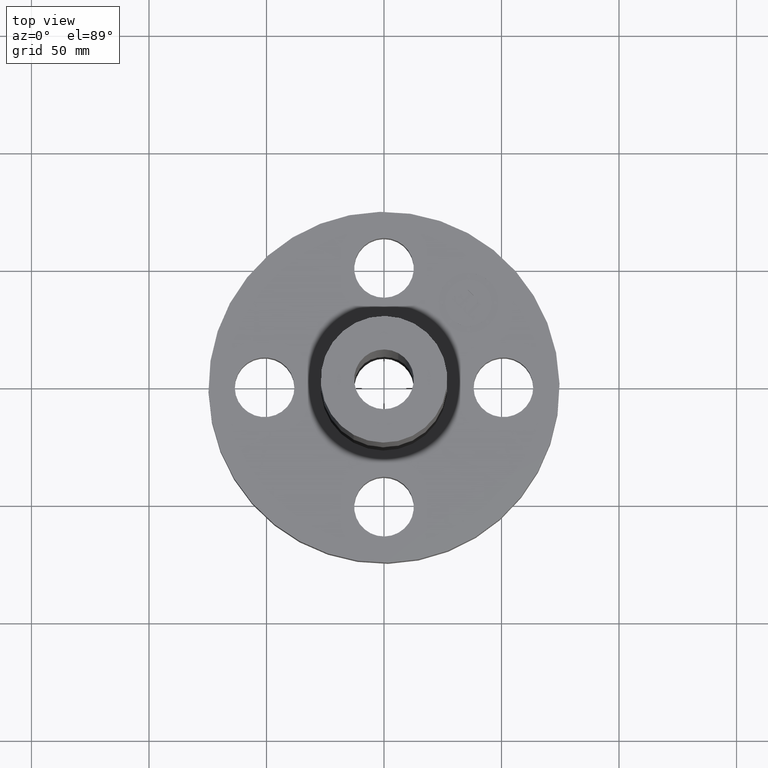
[diagram: clean part render]
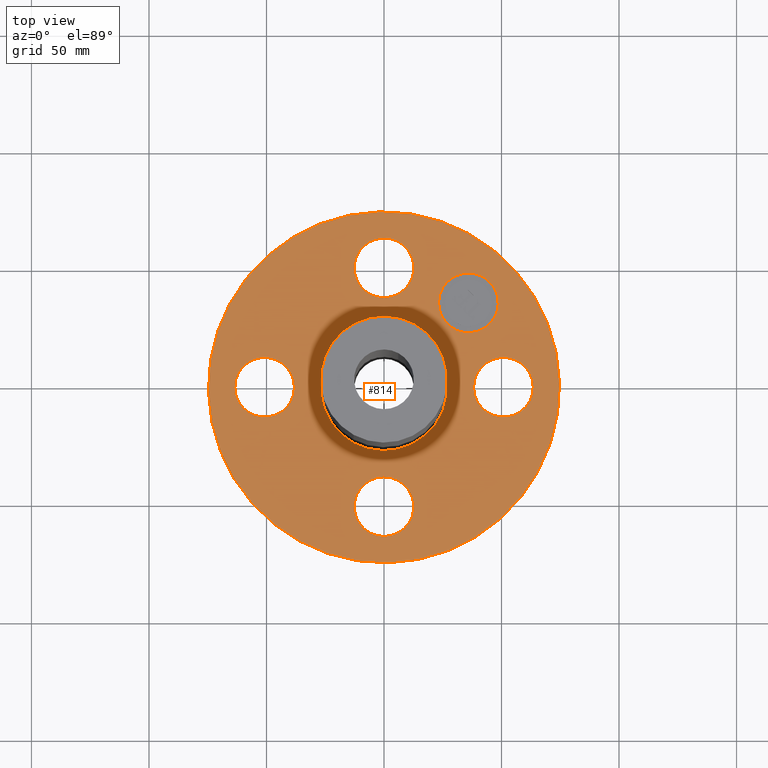
[diagram: same view with one face highlighted and labeled with its STEP entity id]
A machine part, top view. The second image highlights one B-rep face of the part: STEP entity #814.
In plain terms, the highlighted planar face has unit normal (0, 0, -1).
Its self-contained STEP definition (entity closure, byte-faithful):
#51=AXIS2_PLACEMENT_3D('Circle Axis2P3D',#49,#50,$) ;
#182=AXIS2_PLACEMENT_3D('Circle Axis2P3D',#180,#181,$) ;
#206=AXIS2_PLACEMENT_3D('Circle Axis2P3D',#204,#205,$) ;
#225=AXIS2_PLACEMENT_3D('Circle Axis2P3D',#223,#224,$) ;
#242=AXIS2_PLACEMENT_3D('Circle Axis2P3D',#240,#241,$) ;
#277=AXIS2_PLACEMENT_3D('Circle Axis2P3D',#275,#276,$) ;
#652=AXIS2_PLACEMENT_3D('Circle Axis2P3D',#650,#651,$) ;
#671=AXIS2_PLACEMENT_3D('Circle Axis2P3D',#669,#670,$) ;
#695=AXIS2_PLACEMENT_3D('Circle Axis2P3D',#693,#694,$) ;
#714=AXIS2_PLACEMENT_3D('Circle Axis2P3D',#712,#713,$) ;
#738=AXIS2_PLACEMENT_3D('Circle Axis2P3D',#736,#737,$) ;
#757=AXIS2_PLACEMENT_3D('Circle Axis2P3D',#755,#756,$) ;
#770=AXIS2_PLACEMENT_3D('Plane Axis2P3D',#767,#768,#769) ;
#798=AXIS2_PLACEMENT_3D('Circle Axis2P3D',#796,#797,$) ;
#807=AXIS2_PLACEMENT_3D('Circle Axis2P3D',#805,#806,$) ;
#44=CARTESIAN_POINT('Vertex',(1.56120871906,-0.239712769303,1.12)) ;
#49=CARTESIAN_POINT('Axis2P3D Location',(2.00000000001,0.,1.12)) ;
#53=CARTESIAN_POINT('Vertex',(2.43879128095,0.239712769303,1.12)) ;
#180=CARTESIAN_POINT('Axis2P3D Location',(2.00000000001,0.,1.12)) ;
#201=CARTESIAN_POINT('Vertex',(-1.4095110835,-2.58009273197,1.12)) ;
#204=CARTESIAN_POINT('Axis2P3D Location',(0.,0.,1.12)) ;
#208=CARTESIAN_POINT('Vertex',(1.4095110835,2.58009273197,1.12)) ;
#223=CARTESIAN_POINT('Axis2P3D Location',(0.,0.,1.12)) ;
#240=CARTESIAN_POINT('Axis2P3D Location',(0.,0.,1.12)) ;
#244=CARTESIAN_POINT('Vertex',(0.508191070922,0.930237515608,1.12)) ;
#246=CARTESIAN_POINT('Vertex',(-0.508191070922,-0.930237515608,1.12)) ;
#275=CARTESIAN_POINT('Axis2P3D Location',(0.,0.,1.12)) ;
#647=CARTESIAN_POINT('Vertex',(-0.239712769303,-1.56120871906,1.12)) ;
#650=CARTESIAN_POINT('Axis2P3D Location',(-1.57276554636E-016,-2.00000000001,1.12)) ;
#654=CARTESIAN_POINT('Vertex',(0.239712769303,-2.43879128095,1.12)) ;
#669=CARTESIAN_POINT('Axis2P3D Location',(-1.57276554636E-016,-2.00000000001,1.12)) ;
#690=CARTESIAN_POINT('Vertex',(-1.56120871906,0.239712769303,1.12)) ;
#693=CARTESIAN_POINT('Axis2P3D Location',(-2.00000000001,-2.4492935983E-016,1.12)) ;
#697=CARTESIAN_POINT('Vertex',(-2.43879128095,-0.239712769303,1.12)) ;
#712=CARTESIAN_POINT('Axis2P3D Location',(-2.00000000001,-2.4492935983E-016,1.12)) ;
#733=CARTESIAN_POINT('Vertex',(0.239712769303,1.56120871906,1.12)) ;
#736=CARTESIAN_POINT('Axis2P3D Location',(-8.76528051945E-017,2.00000000001,1.12)) ;
#740=CARTESIAN_POINT('Vertex',(-0.239712769303,2.43879128095,1.12)) ;
#755=CARTESIAN_POINT('Axis2P3D Location',(-8.76528051945E-017,2.00000000001,1.12)) ;
#767=CARTESIAN_POINT('Axis2P3D Location',(0.,2.94000000001,1.12)) ;
#796=CARTESIAN_POINT('Axis2P3D Location',(1.41421356238,1.41421356238,1.12)) ;
#800=CARTESIAN_POINT('Vertex',(1.76776694944,1.06066017532,1.12)) ;
#802=CARTESIAN_POINT('Vertex',(1.06066017532,1.76776694944,1.12)) ;
#805=CARTESIAN_POINT('Axis2P3D Location',(1.41421356238,1.41421356238,1.12)) ;
#50=DIRECTION('Axis2P3D Direction',(0.,-0.,0.0393700787402)) ;
#181=DIRECTION('Axis2P3D Direction',(0.,-0.,0.0393700787402)) ;
#205=DIRECTION('Axis2P3D Direction',(0.,0.,-0.0393700787402)) ;
#224=DIRECTION('Axis2P3D Direction',(0.,0.,-0.0393700787402)) ;
#241=DIRECTION('Axis2P3D Direction',(0.,0.,-0.0393700787402)) ;
#276=DIRECTION('Axis2P3D Direction',(0.,0.,-0.0393700787402)) ;
#651=DIRECTION('Axis2P3D Direction',(-0.,0.,0.0393700787402)) ;
#670=DIRECTION('Axis2P3D Direction',(-0.,0.,0.0393700787402)) ;
#694=DIRECTION('Axis2P3D Direction',(0.,0.,0.0393700787402)) ;
#713=DIRECTION('Axis2P3D Direction',(0.,0.,0.0393700787402)) ;
#737=DIRECTION('Axis2P3D Direction',(0.,0.,0.0393700787402)) ;
#756=DIRECTION('Axis2P3D Direction',(0.,0.,0.0393700787402)) ;
#768=DIRECTION('Axis2P3D Direction',(0.,0.,-0.0393700787402)) ;
#769=DIRECTION('Axis2P3D XDirection',(0.0393700787402,0.,0.)) ;
#797=DIRECTION('Axis2P3D Direction',(0.,0.,-0.0393700787402)) ;
#806=DIRECTION('Axis2P3D Direction',(0.,0.,-0.0393700787402)) ;
#773=ORIENTED_EDGE('',*,*,#227,.F.) ;
#774=ORIENTED_EDGE('',*,*,#210,.F.) ;
#777=ORIENTED_EDGE('',*,*,#55,.T.) ;
#778=ORIENTED_EDGE('',*,*,#184,.T.) ;
#781=ORIENTED_EDGE('',*,*,#279,.T.) ;
#782=ORIENTED_EDGE('',*,*,#248,.T.) ;
#785=ORIENTED_EDGE('',*,*,#673,.T.) ;
#786=ORIENTED_EDGE('',*,*,#656,.T.) ;
#789=ORIENTED_EDGE('',*,*,#716,.T.) ;
#790=ORIENTED_EDGE('',*,*,#699,.T.) ;
#793=ORIENTED_EDGE('',*,*,#759,.T.) ;
#794=ORIENTED_EDGE('',*,*,#742,.T.) ;
#811=ORIENTED_EDGE('',*,*,#804,.F.) ;
#812=ORIENTED_EDGE('',*,*,#809,.F.) ;
#779=FACE_BOUND('',#776,.T.) ;
#783=FACE_BOUND('',#780,.T.) ;
#787=FACE_BOUND('',#784,.T.) ;
#791=FACE_BOUND('',#788,.T.) ;
#795=FACE_BOUND('',#792,.T.) ;
#813=FACE_BOUND('',#810,.T.) ;
#814=ADVANCED_FACE('PartBody',(#775,#779,#783,#787,#791,#795,#813),#771,.F.) ;
#52=CIRCLE('generated circle',#51,0.500000000002) ;
#183=CIRCLE('generated circle',#182,0.500000000002) ;
#207=CIRCLE('generated circle',#206,2.94000000001) ;
#226=CIRCLE('generated circle',#225,2.94000000001) ;
#243=CIRCLE('generated circle',#242,1.06) ;
#278=CIRCLE('generated circle',#277,1.06) ;
#653=CIRCLE('generated circle',#652,0.500000000002) ;
#672=CIRCLE('generated circle',#671,0.500000000002) ;
#696=CIRCLE('generated circle',#695,0.500000000002) ;
#715=CIRCLE('generated circle',#714,0.500000000002) ;
#739=CIRCLE('generated circle',#738,0.500000000002) ;
#758=CIRCLE('generated circle',#757,0.500000000002) ;
#799=CIRCLE('generated circle',#798,0.499999995002) ;
#808=CIRCLE('generated circle',#807,0.499999995002) ;
#55=EDGE_CURVE('',#54,#45,#52,.F.) ;
#184=EDGE_CURVE('',#45,#54,#183,.F.) ;
#210=EDGE_CURVE('',#202,#209,#207,.T.) ;
#227=EDGE_CURVE('',#209,#202,#226,.T.) ;
#248=EDGE_CURVE('',#245,#247,#243,.T.) ;
#279=EDGE_CURVE('',#247,#245,#278,.T.) ;
#656=EDGE_CURVE('',#655,#648,#653,.F.) ;
#673=EDGE_CURVE('',#648,#655,#672,.F.) ;
#699=EDGE_CURVE('',#698,#691,#696,.F.) ;
#716=EDGE_CURVE('',#691,#698,#715,.F.) ;
#742=EDGE_CURVE('',#741,#734,#739,.F.) ;
#759=EDGE_CURVE('',#734,#741,#758,.F.) ;
#804=EDGE_CURVE('',#801,#803,#799,.F.) ;
#809=EDGE_CURVE('',#803,#801,#808,.F.) ;
#772=EDGE_LOOP('',(#773,#774)) ;
#776=EDGE_LOOP('',(#777,#778)) ;
#780=EDGE_LOOP('',(#781,#782)) ;
#784=EDGE_LOOP('',(#785,#786)) ;
#788=EDGE_LOOP('',(#789,#790)) ;
#792=EDGE_LOOP('',(#793,#794)) ;
#810=EDGE_LOOP('',(#811,#812)) ;
#775=FACE_OUTER_BOUND('',#772,.T.) ;
#771=PLANE('',#770) ;
#45=VERTEX_POINT('',#44) ;
#54=VERTEX_POINT('',#53) ;
#202=VERTEX_POINT('',#201) ;
#209=VERTEX_POINT('',#208) ;
#245=VERTEX_POINT('',#244) ;
#247=VERTEX_POINT('',#246) ;
#648=VERTEX_POINT('',#647) ;
#655=VERTEX_POINT('',#654) ;
#691=VERTEX_POINT('',#690) ;
#698=VERTEX_POINT('',#697) ;
#734=VERTEX_POINT('',#733) ;
#741=VERTEX_POINT('',#740) ;
#801=VERTEX_POINT('',#800) ;
#803=VERTEX_POINT('',#802) ;